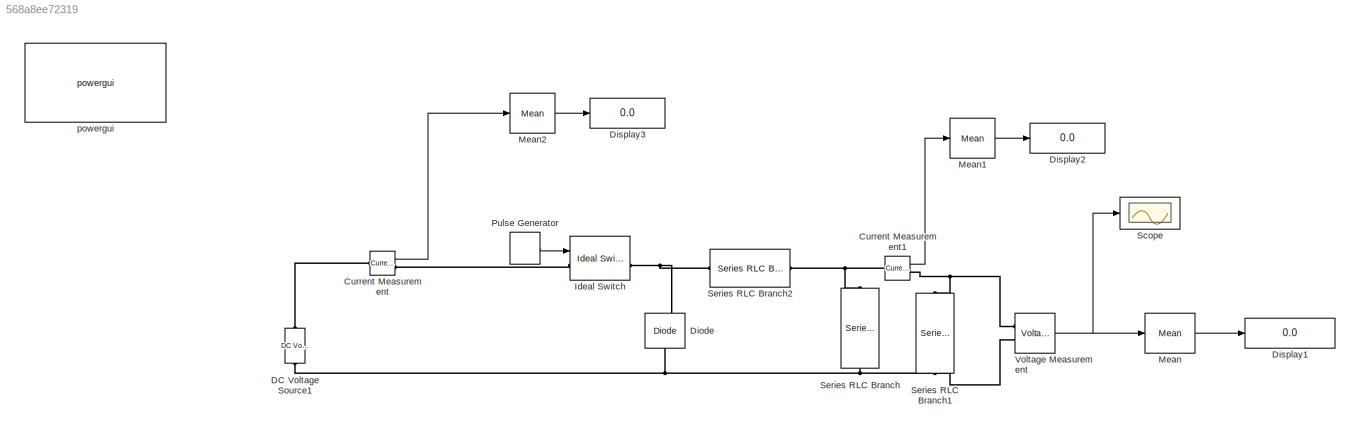
MODEL slx_568a8ee72319
KIND model
CONFIG AbsTol = auto
CONFIG EnableMultiTasking = off
CONFIG FixedStep = auto
CONFIG MaxStep = auto
CONFIG MinStep = auto
CONFIG RelTol = 1e-3
CONFIG SampleTimeConstraint = Unconstrained
CONFIG SolverName = VariableStepAuto
CONFIG StartTime = 0.0
CONFIG StopTime = 10.0
BLOCK [Reference] Current Measurement  REF=spsCurrentMeasurementLib/Current Measurement
  Ports = [0, 1, 0, 0, 0, 1, 1]
  SourceBlock = spsCurrentMeasurementLib/Current Measurement
  SourceProductBaseCode = PS
  SourceType = Current Measurement
  UserDataPersistent = on
BLOCK [Reference] Current Measurement1  REF=spsCurrentMeasurementLib/Current Measurement
  Ports = [0, 1, 0, 0, 0, 1, 1]
  SourceBlock = spsCurrentMeasurementLib/Current Measurement
  SourceProductBaseCode = PS
  SourceType = Current Measurement
  UserDataPersistent = on
BLOCK [Reference] DC Voltage Source1  REF=spsDCVoltageSourceLib/DC Voltage Source
  Ports = [0, 0, 0, 0, 0, 1, 1]
  SourceBlock = spsDCVoltageSourceLib/DC Voltage Source
  SourceProductBaseCode = PS
  SourceType = DC Voltage Source
BLOCK [Reference] Diode  REF=spsDiodeLib/Diode
  NameLocation = right
  Ports = [0, 1, 0, 0, 0, 1, 1]
  SourceBlock = spsDiodeLib/Diode
  SourceProductBaseCode = PS
  SourceType = Diode
BLOCK [Display] Display1
  Decimation = 1
  Ports = [1]
BLOCK [Display] Display2
  Decimation = 1
  Ports = [1]
BLOCK [Display] Display3
  Decimation = 1
  Ports = [1]
BLOCK [Reference] Ideal Switch  REF=spsIdealSwitchLib/Ideal Switch
  Ports = [1, 1, 0, 0, 0, 1, 1]
  SourceBlock = spsIdealSwitchLib/Ideal Switch
  SourceProductBaseCode = PS
  SourceType = Ideal Switch
BLOCK [Reference] Mean  REF=spsMeanLib/Mean
  Ports = [1, 1]
  SourceBlock = spsMeanLib/Mean
  SourceProductBaseCode = PS
  SourceType = Mean
BLOCK [Reference] Mean1  REF=spsMeanLib/Mean
  Ports = [1, 1]
  SourceBlock = spsMeanLib/Mean
  SourceProductBaseCode = PS
  SourceType = Mean
BLOCK [Reference] Mean2  REF=spsMeanLib/Mean
  Ports = [1, 1]
  SourceBlock = spsMeanLib/Mean
  SourceProductBaseCode = PS
  SourceType = Mean
BLOCK [DiscretePulseGenerator] Pulse Generator
  Period = 1/10000
  Ports = [0, 1]
  PulseType = Time based
  PulseWidth = 50
BLOCK [Scope] Scope
  Floating = off
  NumInputPorts = 1
  Ports = [1]
  ScopeSpecificationString = Simulink.scopes.TimeScopeBlockCfg('CurrentConfiguration', extmgr.ConfigurationSet(extmgr.Configuration('Core','General UI',true,'FigureColor',[1 1 1]),extmgr.Configuration('Core','Source UI',true),extmgr.Configuration('Sources','WiredSimulink',true),extmgr.Configuration('Visuals','Time Domain',true,'SerializedDisplays',{struct('MinYLimReal','-14.17782','MaxYLimReal','128.08427','YLabelReal','','Mi...<+1469ch>
BLOCK [Reference] Series RLC Branch  REF=spsSeriesRLCBranchLib/Series RLC Branch
  NameLocation = left
  Ports = [0, 0, 0, 0, 0, 1, 1]
  SourceBlock = spsSeriesRLCBranchLib/Series RLC Branch
  SourceProductBaseCode = PS
  SourceType = Series RLC Branch
BLOCK [Reference] Series RLC Branch1  REF=spsSeriesRLCBranchLib/Series RLC Branch
  NameLocation = left
  Ports = [0, 0, 0, 0, 0, 1, 1]
  SourceBlock = spsSeriesRLCBranchLib/Series RLC Branch
  SourceProductBaseCode = PS
  SourceType = Series RLC Branch
BLOCK [Reference] Series RLC Branch2  REF=spsSeriesRLCBranchLib/Series RLC Branch
  Ports = [0, 0, 0, 0, 0, 1, 1]
  SourceBlock = spsSeriesRLCBranchLib/Series RLC Branch
  SourceProductBaseCode = PS
  SourceType = Series RLC Branch
BLOCK [Reference] Voltage Measurement  REF=spsVoltageMeasurementLib/Voltage Measurement
  Ports = [0, 1, 0, 0, 0, 2]
  SourceBlock = spsVoltageMeasurementLib/Voltage Measurement
  SourceProductBaseCode = PS
  SourceType = Voltage Measurement
  UserDataPersistent = on
BLOCK [Reference] powergui  REF=spspowerguiLib/powergui
  Ports = []
  Priority = 1
  SourceBlock = spspowerguiLib/powergui
  SourceProductBaseCode = PS
  SourceType = PSB option menu block
LINE Current Measurement1:1 -> Mean1:1
LINE Current Measurement:1 -> Mean2:1
LINE Mean1:1 -> Display2:1
LINE Mean2:1 -> Display3:1
LINE Mean:1 -> Display1:1
LINE Pulse Generator:1 -> Ideal Switch:1
NET Voltage Measurement:1 -> Mean:1, Scope:1
PNET net1: Current Measurement1:LConn1 -- Series RLC Branch2:RConn1 -- Series RLC Branch:LConn1
PNET net2: Current Measurement1:RConn1 -- Series RLC Branch1:LConn1 -- Voltage Measurement:LConn1
PLINE Current Measurement:LConn1 -- DC Voltage Source1:RConn1
PLINE Current Measurement:RConn1 -- Ideal Switch:LConn1
PNET net3: DC Voltage Source1:LConn1 -- Diode:LConn1 -- Series RLC Branch1:RConn1 -- Series RLC Branch:RConn1 -- Voltage Measurement:LConn2
PNET net4: Diode:RConn1 -- Ideal Switch:RConn1 -- Series RLC Branch2:LConn1
note: NET lines group one-source signal fan-out (src -> all destinations, sorted); 1:1 wires keep LINE; PNET lines group multi-terminal physical nets as a canonical sorted terminal list (undirected conserving connections); 2-terminal nets keep the pairwise PLINE form
